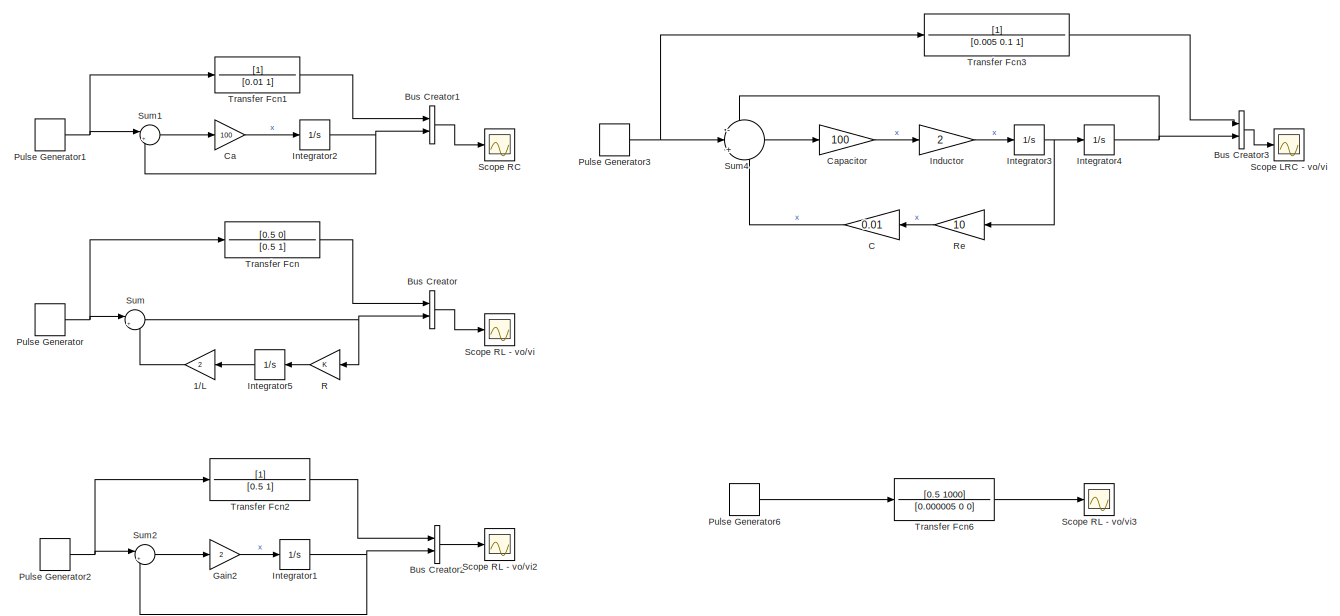
[diagram: root canvas - part 1/2, left side, full height]
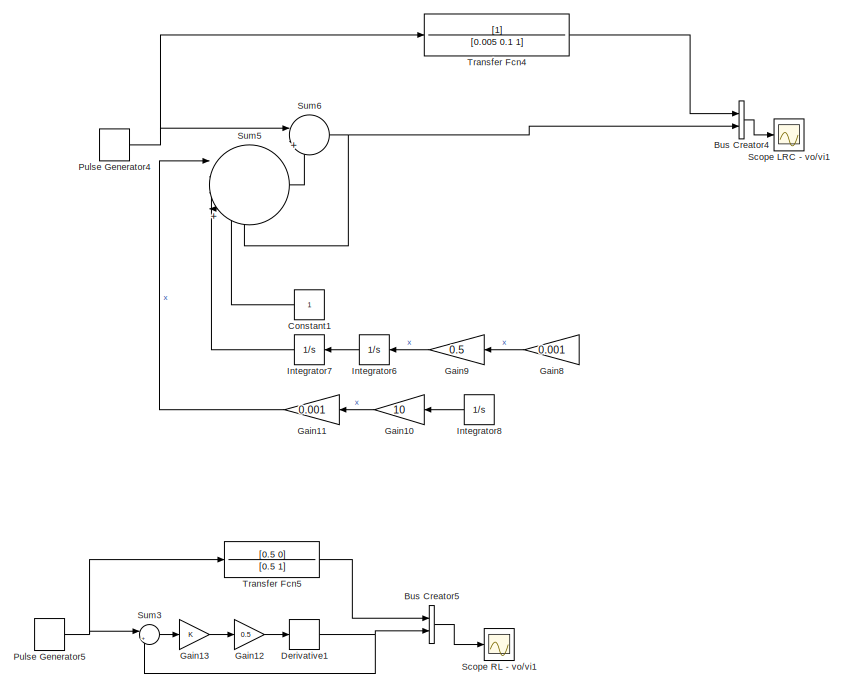
[diagram: root canvas - part 2/2, right side, full height]
MODEL slx_7888a37cd492
KIND model
CONFIG AbsTol = auto
CONFIG EnableMultiTasking = off
CONFIG FixedStep = auto
CONFIG MaxStep = auto
CONFIG MinStep = auto
CONFIG RelTol = 1e-3
CONFIG SampleTimeConstraint = Unconstrained
CONFIG SolverName = VariableStepAuto
CONFIG StartTime = 0.0
CONFIG StopTime = 10.0
BLOCK [Gain] 1//L
  Gain = 2
  NameLocation = top
BLOCK [BusCreator] Bus Creator
  DisplayOption = bar
  InheritFromInputs = on
  Inputs = 2
  Ports = [2, 1]
BLOCK [BusCreator] Bus Creator1
  DisplayOption = bar
  InheritFromInputs = on
  Inputs = 2
  Ports = [2, 1]
BLOCK [BusCreator] Bus Creator2
  DisplayOption = bar
  InheritFromInputs = on
  Inputs = 2
  Ports = [2, 1]
BLOCK [BusCreator] Bus Creator3
  DisplayOption = bar
  InheritFromInputs = on
  Inputs = 2
  Ports = [2, 1]
BLOCK [BusCreator] Bus Creator4
  DisplayOption = bar
  InheritFromInputs = on
  Inputs = 2
  Ports = [2, 1]
BLOCK [BusCreator] Bus Creator5
  DisplayOption = bar
  InheritFromInputs = on
  Inputs = 2
  Ports = [2, 1]
BLOCK [Gain] C
  Gain = 0.01
  NameLocation = top
BLOCK [Gain] Ca
  Gain = 100
BLOCK [Gain] Capacitor
  Gain = 100
BLOCK [Constant] Constant1
  NameLocation = top
BLOCK [Derivative] Derivative1
  CoefficientInTFapproximation = 1
BLOCK [Gain] Gain10
  Gain = 10
  NameLocation = top
BLOCK [Gain] Gain11
  Gain = 0.001
  NameLocation = top
BLOCK [Gain] Gain12
  Gain = 0.5
BLOCK [Gain] Gain13
BLOCK [Gain] Gain2
  Gain = 2
BLOCK [Gain] Gain8
  Gain = 0.001
  NameLocation = top
BLOCK [Gain] Gain9
  Gain = 0.5
  NameLocation = top
BLOCK [Gain] Inductor
  Gain = 2
BLOCK [Integrator] Integrator1
  Ports = [1, 1]
BLOCK [Integrator] Integrator2
  Ports = [1, 1]
BLOCK [Integrator] Integrator3
  Ports = [1, 1]
BLOCK [Integrator] Integrator4
  Ports = [1, 1]
BLOCK [Integrator] Integrator5
  NameLocation = top
  Ports = [1, 1]
BLOCK [Integrator] Integrator6
  NameLocation = top
  Ports = [1, 1]
BLOCK [Integrator] Integrator7
  NameLocation = top
  Ports = [1, 1]
BLOCK [Integrator] Integrator8
  NameLocation = top
  Ports = [1, 1]
BLOCK [DiscretePulseGenerator] Pulse Generator
  Amplitude = 12
  Period = 3
  Ports = [0, 1]
  PulseType = Time based
  PulseWidth = 5
BLOCK [DiscretePulseGenerator] Pulse Generator1
  Amplitude = 12
  Period = 3
  Ports = [0, 1]
  PulseType = Time based
  PulseWidth = 5
BLOCK [DiscretePulseGenerator] Pulse Generator2
  Amplitude = 12
  Period = 3
  Ports = [0, 1]
  PulseType = Time based
  PulseWidth = 5
BLOCK [DiscretePulseGenerator] Pulse Generator3
  Amplitude = 12
  Period = 3
  Ports = [0, 1]
  PulseType = Time based
  PulseWidth = 5
BLOCK [DiscretePulseGenerator] Pulse Generator4
  Amplitude = 12
  Period = 3
  Ports = [0, 1]
  PulseType = Time based
  PulseWidth = 5
BLOCK [DiscretePulseGenerator] Pulse Generator5
  Amplitude = 12
  Period = 3
  Ports = [0, 1]
  PulseType = Time based
  PulseWidth = 5
BLOCK [DiscretePulseGenerator] Pulse Generator6
  Amplitude = 12
  Period = 3
  Ports = [0, 1]
  PulseType = Time based
  PulseWidth = 5
BLOCK [Gain] R
  NameLocation = top
BLOCK [Gain] Re
  Gain = 10
  NameLocation = top
BLOCK [Scope] Scope LRC - vo//vi
  Floating = off
  NumInputPorts = 1
  Ports = [1]
  ScopeSpecificationString = Simulink.scopes.TimeScopeBlockCfg('CurrentConfiguration', extmgr.ConfigurationSet(extmgr.Configuration('Core','General UI',true),extmgr.Configuration('Core','Source UI',true),extmgr.Configuration('Sources','WiredSimulink',true,'DataLoggingVariableName','ScopeData3'),extmgr.Configuration('Visuals','Time Domain',true,'SerializedDisplays',{struct('MinYLimReal','-3.29146','MaxYLimReal','9.02861','YLab...<+1505ch>
BLOCK [Scope] Scope LRC - vo//vi1
  Floating = off
  NumInputPorts = 1
  Ports = [1]
  ScopeSpecificationString = Simulink.scopes.TimeScopeBlockCfg('CurrentConfiguration', extmgr.ConfigurationSet(extmgr.Configuration('Core','General UI',true),extmgr.Configuration('Core','Source UI',true),extmgr.Configuration('Sources','WiredSimulink',true,'DataLoggingVariableName','ScopeData4'),extmgr.Configuration('Visuals','Time Domain',true,'SerializedDisplays',{struct('MinYLimReal','-8.10452','MaxYLimReal','9.3231','YLabe...<+1493ch>
BLOCK [Scope] Scope RC
  Floating = off
  NumInputPorts = 1
  Ports = [1]
  ScopeSpecificationString = Simulink.scopes.TimeScopeBlockCfg('CurrentConfiguration', extmgr.ConfigurationSet(extmgr.Configuration('Core','General UI',true),extmgr.Configuration('Core','Source UI',true),extmgr.Configuration('Sources','WiredSimulink',true,'DataLoggingVariableName','ScopeData1'),extmgr.Configuration('Visuals','Time Domain',true,'SerializedDisplays',{struct('MinYLimReal','-1.49996','MaxYLimReal','13.49968','YLa...<+1531ch>
BLOCK [Scope] Scope RL - vo//vi
  Floating = off
  NumInputPorts = 1
  Ports = [1]
  ScopeSpecificationString = Simulink.scopes.TimeScopeBlockCfg('CurrentConfiguration', extmgr.ConfigurationSet(extmgr.Configuration('Core','General UI',true),extmgr.Configuration('Core','Source UI',true),extmgr.Configuration('Sources','WiredSimulink',true),extmgr.Configuration('Visuals','Time Domain',true,'SerializedDisplays',{struct('MinYLimReal','-14.09324','MaxYLimReal','14.89925','YLabelReal','','MinYLimMag','0.00000','Ma...<+1462ch>
BLOCK [Scope] Scope RL - vo//vi1
  Floating = off
  NumInputPorts = 1
  Ports = [1]
  ScopeSpecificationString = Simulink.scopes.TimeScopeBlockCfg('CurrentConfiguration', extmgr.ConfigurationSet(extmgr.Configuration('Core','General UI',true),extmgr.Configuration('Core','Source UI',true),extmgr.Configuration('Sources','WiredSimulink',true,'DataLoggingVariableName','ScopeData5'),extmgr.Configuration('Visuals','Time Domain',true,'SerializedDisplays',{struct('MinYLimReal','-14.09324','MaxYLimReal','14.89925','YL...<+1508ch>
BLOCK [Scope] Scope RL - vo//vi2
  Floating = off
  NumInputPorts = 1
  Ports = [1]
  ScopeSpecificationString = Simulink.scopes.TimeScopeBlockCfg('CurrentConfiguration', extmgr.ConfigurationSet(extmgr.Configuration('Core','General UI',true),extmgr.Configuration('Core','Source UI',true),extmgr.Configuration('Sources','WiredSimulink',true,'DataLoggingVariableName','ScopeData2'),extmgr.Configuration('Visuals','Time Domain',true,'SerializedDisplays',{struct('MinYLimReal','-14.09324','MaxYLimReal','14.89925','YL...<+1510ch>
BLOCK [Scope] Scope RL - vo//vi3
  Floating = off
  NumInputPorts = 1
  Ports = [1]
  ScopeSpecificationString = Simulink.scopes.TimeScopeBlockCfg('CurrentConfiguration', extmgr.ConfigurationSet(extmgr.Configuration('Core','General UI',true),extmgr.Configuration('Core','Source UI',true),extmgr.Configuration('Sources','WiredSimulink',true,'DataLoggingVariableName','ScopeData6'),extmgr.Configuration('Visuals','Time Domain',true,'SerializedDisplays',{struct('MinYLimReal','3099903099.20751','MaxYLimReal','433810...<+1574ch>
BLOCK [Sum] Sum
  Inputs = |+-
  Ports = [2, 1]
BLOCK [Sum] Sum1
  Inputs = |+-
  Ports = [2, 1]
BLOCK [Sum] Sum2
  Inputs = |+-
  Ports = [2, 1]
BLOCK [Sum] Sum3
  Inputs = |+-
  Ports = [2, 1]
BLOCK [Sum] Sum4
  Inputs = -|+|-
  Ports = [3, 1]
BLOCK [Sum] Sum5
  Inputs = |||||||+||+|+|+
  Ports = [4, 1]
BLOCK [Sum] Sum6
  Inputs = ||+|-
  Ports = [2, 1]
BLOCK [TransferFcn] Transfer Fcn
  Denominator = [0.5 1]
  Numerator = [0.5 0]
BLOCK [TransferFcn] Transfer Fcn1
  Denominator = [0.01 1]
BLOCK [TransferFcn] Transfer Fcn2
  Denominator = [0.5 1]
BLOCK [TransferFcn] Transfer Fcn3
  Denominator = [0.005 0.1 1]
BLOCK [TransferFcn] Transfer Fcn4
  Denominator = [0.005 0.1 1]
BLOCK [TransferFcn] Transfer Fcn5
  Denominator = [0.5 1]
  Numerator = [0.5 0]
BLOCK [TransferFcn] Transfer Fcn6
  Denominator = [0.000005 0 0]
  Numerator = [0.5 1000]
LINE 1//L:1 -> Sum:2
LINE Bus Creator1:1 -> Scope RC:1
LINE Bus Creator2:1 -> Scope RL - vo//vi2:1
LINE Bus Creator3:1 -> Scope LRC - vo//vi:1
LINE Bus Creator4:1 -> Scope LRC - vo//vi1:1
LINE Bus Creator5:1 -> Scope RL - vo//vi1:1
LINE Bus Creator:1 -> Scope RL - vo//vi:1
LINE C:1 -> Sum4:3
LINE Ca:1 -> Integrator2:1
LINE Capacitor:1 -> Inductor:1
LINE Constant1:1 -> Sum5:3
NET Derivative1:1 -> Bus Creator5:2, Sum3:2
LINE Gain10:1 -> Gain11:1
LINE Gain11:1 -> Sum5:1
LINE Gain12:1 -> Derivative1:1
LINE Gain13:1 -> Gain12:1
LINE Gain2:1 -> Integrator1:1
LINE Gain8:1 -> Gain9:1
LINE Gain9:1 -> Integrator6:1
LINE Inductor:1 -> Integrator3:1
NET Integrator1:1 -> Bus Creator2:2, Sum2:2
NET Integrator2:1 -> Bus Creator1:2, Sum1:2
NET Integrator3:1 -> Integrator4:1, Re:1
NET Integrator4:1 -> Bus Creator3:2, Sum4:1
LINE Integrator5:1 -> 1//L:1
LINE Integrator6:1 -> Integrator7:1
LINE Integrator7:1 -> Sum5:2
LINE Integrator8:1 -> Gain10:1
NET Pulse Generator1:1 -> Sum1:1, Transfer Fcn1:1
NET Pulse Generator2:1 -> Sum2:1, Transfer Fcn2:1
NET Pulse Generator3:1 -> Sum4:2, Transfer Fcn3:1
NET Pulse Generator4:1 -> Sum6:1, Transfer Fcn4:1
NET Pulse Generator5:1 -> Sum3:1, Transfer Fcn5:1
LINE Pulse Generator6:1 -> Transfer Fcn6:1
NET Pulse Generator:1 -> Sum:1, Transfer Fcn:1
LINE R:1 -> Integrator5:1
LINE Re:1 -> C:1
LINE Sum1:1 -> Ca:1
LINE Sum2:1 -> Gain2:1
LINE Sum3:1 -> Gain13:1
LINE Sum4:1 -> Capacitor:1
LINE Sum5:1 -> Sum6:2
NET Sum6:1 -> Bus Creator4:2, Sum5:4
NET Sum:1 -> Bus Creator:2, R:1
LINE Transfer Fcn1:1 -> Bus Creator1:1
LINE Transfer Fcn2:1 -> Bus Creator2:1
LINE Transfer Fcn3:1 -> Bus Creator3:1
LINE Transfer Fcn4:1 -> Bus Creator4:1
LINE Transfer Fcn5:1 -> Bus Creator5:1
LINE Transfer Fcn6:1 -> Scope RL - vo//vi3:1
LINE Transfer Fcn:1 -> Bus Creator:1
note: NET lines group one-source signal fan-out (src -> all destinations, sorted); 1:1 wires keep LINE
